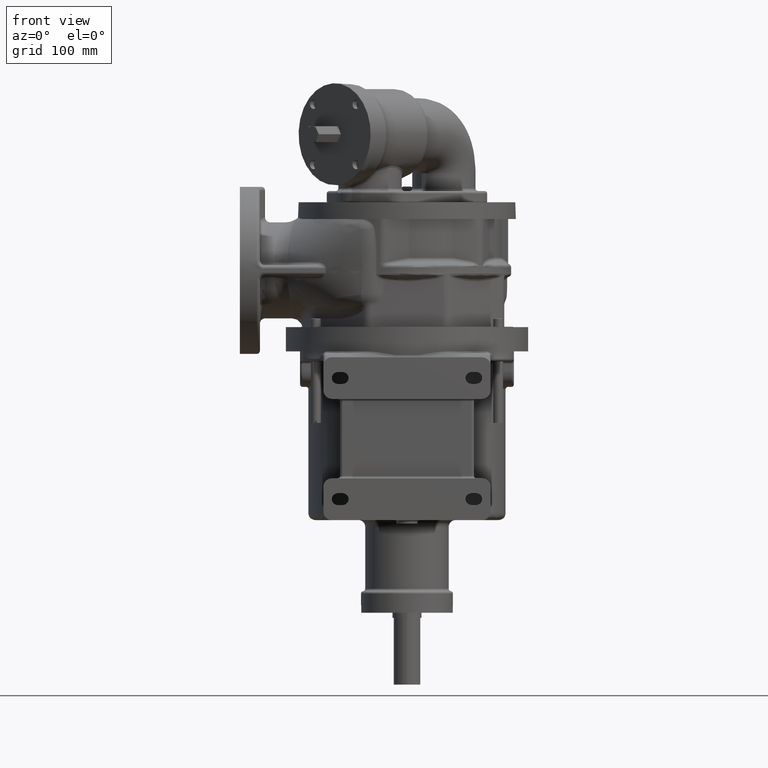
[diagram: clean part render]
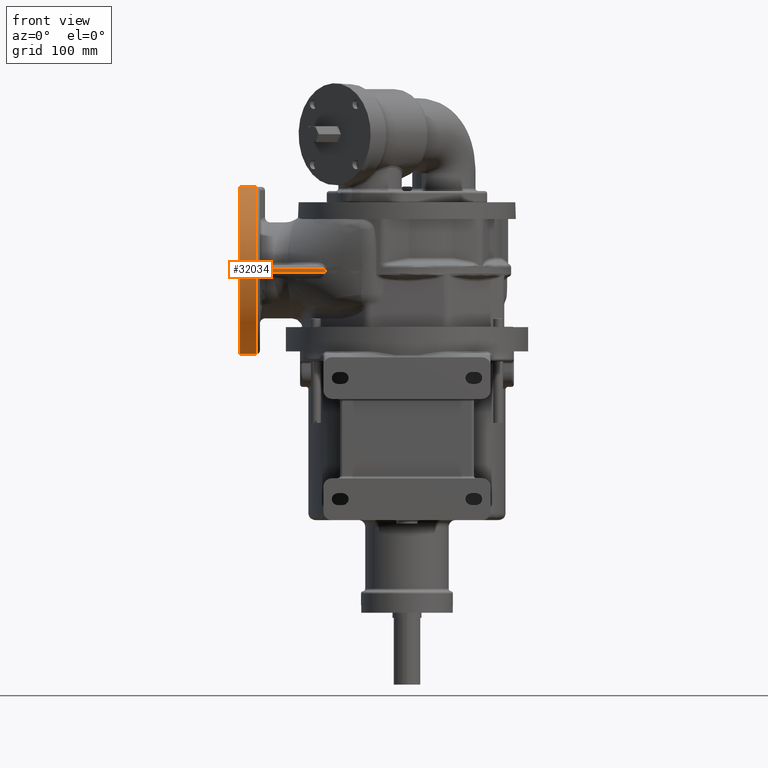
[diagram: same view with one face highlighted and labeled with its STEP entity id]
A machine part, front view. The second image highlights one B-rep face of the part: STEP entity #32034.
In plain terms, the highlighted cylindrical surface (partial cylindrical patch) has radius 100 mm, axis along (-1, 0, 0).
Its self-contained STEP definition (entity closure, byte-faithful):
#5959=CARTESIAN_POINT('',(-1.76E2,-6.588078458684E0,1.967827501236E2));
#5961=CARTESIAN_POINT('',(-1.76E2,-4.946328324905E-14,9.7E1));
#5962=DIRECTION('',(-1.E0,0.E0,0.E0));
#5963=DIRECTION('',(0.E0,-6.588078458684E-2,9.978275012357E-1));
#5964=AXIS2_PLACEMENT_3D('',#5961,#5962,#5963);
#5966=DIRECTION('',(-1.E0,-1.515624145678E-13,0.E0));
#5967=VECTOR('',#5966,2.4E1);
#5968=CARTESIAN_POINT('',(-1.76E2,-1.061186722255E-13,1.97E2));
#5969=LINE('',#5968,#5967);
#6060=CARTESIAN_POINT('',(-2.E2,-4.946328324905E-14,9.7E1));
#6061=DIRECTION('',(-1.E0,0.E0,0.E0));
#6062=DIRECTION('',(0.E0,0.E0,-1.E0));
#6063=AXIS2_PLACEMENT_3D('',#6060,#6061,#6062);
#6065=CARTESIAN_POINT('',(-1.76E2,-6.588078458684E0,1.967827501236E2));
#6066=CARTESIAN_POINT('',(-1.760687739567E2,-6.690023339579E0,
1.967760192907E2));
#6067=CARTESIAN_POINT('',(-1.762093848551E2,-6.891387920205E0,
1.967624107616E2));
#6068=CARTESIAN_POINT('',(-1.764296390594E2,-7.186120729896E0,
1.967416061799E2));
#6069=CARTESIAN_POINT('',(-1.766586817783E2,-7.472831379510E0,
1.967205272833E2));
#6070=CARTESIAN_POINT('',(-1.768961919772E2,-7.751200861915E0,
1.966992680315E2));
#6071=CARTESIAN_POINT('',(-1.770597496071E2,-7.930807255114E0,
1.966850548140E2));
#6072=CARTESIAN_POINT('',(-1.771428571429E2,-8.019162848397E0,
1.966779465439E2));
#6074=CARTESIAN_POINT('',(-1.771428571429E2,-8.019162848397E0,
1.966779465439E2));
#6075=CARTESIAN_POINT('',(-1.772235926011E2,-8.104997985213E0,
1.966710409937E2));
#6076=CARTESIAN_POINT('',(-1.773823039326E2,-8.279673471781E0,
1.966567653277E2));
#6077=CARTESIAN_POINT('',(-1.776122080230E2,-8.550938890366E0,
1.966338645482E2));
#6078=CARTESIAN_POINT('',(-1.778333612357E2,-8.830939858837E0,
1.966094455514E2));
#6079=CARTESIAN_POINT('',(-1.780454259852E2,-9.119343513568E0,1.965834641E2));
#6080=CARTESIAN_POINT('',(-1.782480144393E2,-9.415747108688E0,
1.965558839439E2));
#6081=CARTESIAN_POINT('',(-1.784408325218E2,-9.719801013431E0,
1.965266664877E2));
#6082=CARTESIAN_POINT('',(-1.786236077074E2,-1.003119873824E1,
1.964957710201E2));
#6083=CARTESIAN_POINT('',(-1.787960685903E2,-1.034959021480E1,
1.964631633484E2));
#6084=CARTESIAN_POINT('',(-1.789579397957E2,-1.067459037503E1,
1.964288158998E2));
#6085=CARTESIAN_POINT('',(-1.791089619218E2,-1.100580970882E1,
1.963927051460E2));
#6086=CARTESIAN_POINT('',(-1.792489004927E2,-1.134285342969E1,
1.963548120084E2));
#6087=CARTESIAN_POINT('',(-1.793775208155E2,-1.168531939927E1,
1.963151224209E2));
#6088=CARTESIAN_POINT('',(-1.794946183984E2,-1.203278438098E1,
1.962736293796E2));
#6089=CARTESIAN_POINT('',(-1.795999834352E2,-1.238482210509E1,
1.962303312739E2));
#6090=CARTESIAN_POINT('',(-1.796934401567E2,-1.274098201455E1,
1.961852348864E2));
#6091=CARTESIAN_POINT('',(-1.797748094677E2,-1.310080781880E1,
1.961383536067E2));
#6092=CARTESIAN_POINT('',(-1.798439493374E2,-1.346383359644E1,
1.960897082531E2));
#6093=CARTESIAN_POINT('',(-1.799007232997E2,-1.382959681861E1,
1.960393256075E2));
#6094=CARTESIAN_POINT('',(-1.799450118765E2,-1.419759233850E1,
1.959872449770E2));
#6095=CARTESIAN_POINT('',(-1.799767156776E2,-1.456724804134E1,
1.959335231240E2));
#6096=CARTESIAN_POINT('',(-1.799957615455E2,-1.493806401991E1,
1.958782139222E2));
#6097=CARTESIAN_POINT('',(-1.799999996430E2,-1.518549538137E1,
1.958403582219E2));
#6098=CARTESIAN_POINT('',(-1.8E2,-1.530931089240E1,1.958211768803E2));
#6100=CARTESIAN_POINT('',(-1.8E2,-4.946328324905E-14,9.7E1));
#6101=DIRECTION('',(1.E0,0.E0,0.E0));
#6102=DIRECTION('',(0.E0,-1.530931089239E-1,9.882117688026E-1));
#6103=AXIS2_PLACEMENT_3D('',#6100,#6101,#6102);
#6105=CARTESIAN_POINT('',(-1.8E2,-9.921567416492E1,1.095E2));
#6106=CARTESIAN_POINT('',(-1.799999996323E2,-9.923133804714E1,
1.093756712116E2));
#6107=CARTESIAN_POINT('',(-1.799957261826E2,-9.926216871871E1,
1.091271944967E2));
#6108=CARTESIAN_POINT('',(-1.799765156330E2,-9.930696179780E1,
1.087547486806E2));
#6109=CARTESIAN_POINT('',(-1.799445294684E2,-9.935020994706E1,
1.083834162719E2));
#6110=CARTESIAN_POINT('',(-1.798998354338E2,-9.939187169920E1,
1.080137055929E2));
#6111=CARTESIAN_POINT('',(-1.798425289683E2,-9.943190481127E1,
1.076461976864E2));
#6112=CARTESIAN_POINT('',(-1.797727253033E2,-9.947028260979E1,
1.072814073144E2));
#6113=CARTESIAN_POINT('',(-1.796905583330E2,-9.950699011507E1,
1.069198039529E2));
#6114=CARTESIAN_POINT('',(-1.795961650769E2,-9.954201838223E1,
1.065618617426E2));
#6115=CARTESIAN_POINT('',(-1.794897232594E2,-9.957536578029E1,
1.062080447403E2));
#6116=CARTESIAN_POINT('',(-1.793714058876E2,-9.960703703542E1,
1.058588135006E2));
#6117=CARTESIAN_POINT('',(-1.792414209424E2,-9.963704459255E1,
1.055146058291E2));
#6118=CARTESIAN_POINT('',(-1.790999758638E2,-9.966540647046E1,
1.051758552766E2));
#6119=CARTESIAN_POINT('',(-1.789473015671E2,-9.969214696947E1,
1.048429784846E2));
#6120=CARTESIAN_POINT('',(-1.787836417540E2,-9.971729567400E1,
1.045163810973E2));
#6121=CARTESIAN_POINT('',(-1.786092469400E2,-9.974088692791E1,
1.041964593745E2));
#6122=CARTESIAN_POINT('',(-1.784243942267E2,-9.976296006653E1,
1.038835905286E2));
#6123=CARTESIAN_POINT('',(-1.782293538163E2,-9.978355781700E1,
1.035781487524E2));
#6124=CARTESIAN_POINT('',(-1.780244286560E2,-9.980272750465E1,
1.032804807593E2));
#6125=CARTESIAN_POINT('',(-1.778099105499E2,-9.982051866067E1,
1.029909343987E2));
#6126=CARTESIAN_POINT('',(-1.775861202652E2,-9.983698449108E1,
1.027098285651E2));
#6127=CARTESIAN_POINT('',(-1.773533733894E2,-9.985217971883E1,
1.024374800990E2));
#6128=CARTESIAN_POINT('',(-1.771120016491E2,-9.986616141693E1,
1.021741823960E2));
#6129=CARTESIAN_POINT('',(-1.768623425043E2,-9.987898782131E1,
1.019202172827E2));
#6130=CARTESIAN_POINT('',(-1.766047356088E2,-9.989071800790E1,
1.016758538563E2));
#6131=CARTESIAN_POINT('',(-1.763395354051E2,-9.990141193444E1,
1.014413376867E2));
#6132=CARTESIAN_POINT('',(-1.760670886633E2,-9.991112900318E1,
1.012169130898E2));
#6133=CARTESIAN_POINT('',(-1.757877606154E2,-9.991992906946E1,
1.010027912298E2));
#6134=CARTESIAN_POINT('',(-1.755019054560E2,-9.992787038550E1,
1.007991891183E2));
#6135=CARTESIAN_POINT('',(-1.752098924871E2,-9.993501094784E1,
1.006062879230E2));
#6136=CARTESIAN_POINT('',(-1.749120830219E2,-9.994140654980E1,
1.004242734110E2));
#6137=CARTESIAN_POINT('',(-1.746088461086E2,-9.994711172962E1,
1.002533026778E2));
#6138=CARTESIAN_POINT('',(-1.743005486452E2,-9.995217857764E1,
1.000935281727E2));
#6139=CARTESIAN_POINT('',(-1.739875579488E2,-9.995665686464E1,
9.994508710498E1));
#6140=CARTESIAN_POINT('',(-1.736702455694E2,-9.996059379289E1,
9.980809989863E1));
#6141=CARTESIAN_POINT('',(-1.733489746033E2,-9.996403337603E1,
9.968268433506E1));
#6142=CARTESIAN_POINT('',(-1.730241058380E2,-9.996701700815E1,
9.956892695298E1));
#6143=CARTESIAN_POINT('',(-1.726959968286E2,-9.996958208727E1,
9.946692715139E1));
#6144=CARTESIAN_POINT('',(-1.723650420026E2,-9.997176286469E1,
9.937675987531E1));
#6145=CARTESIAN_POINT('',(-1.720316355438E2,-9.997358949223E1,
9.929850790103E1));
#6146=CARTESIAN_POINT('',(-1.716960973811E2,-9.997508924014E1,
9.923220447298E1));
#6147=CARTESIAN_POINT('',(-1.713587026136E2,-9.997628502677E1,
9.917788938326E1));
#6148=CARTESIAN_POINT('',(-1.710198652753E2,-9.997719523429E1,
9.913561773571E1));
#6149=CARTESIAN_POINT('',(-1.706801177614E2,-9.997783425967E1,
9.910543147544E1));
#6150=CARTESIAN_POINT('',(-1.703399110133E2,-9.997821279111E1,
9.908734561212E1));
#6151=CARTESIAN_POINT('',(-1.701132992633E2,-9.997829620189E1,
9.908333368741E1));
#6152=CARTESIAN_POINT('',(-1.7E2,-9.997829625585E1,9.908333333333E1));
#6154=DIRECTION('',(1.E0,5.496586785041E-11,5.712294678175E-11));
#6155=VECTOR('',#6154,7.169071041609E1);
#6156=CARTESIAN_POINT('',(-1.7E2,-9.997829625585E1,9.908333333333E1));
#6157=LINE('',#6156,#6155);
#6158=CARTESIAN_POINT('',(-9.828927518178E1,-1.E2,9.700000809340E1));
#6159=CARTESIAN_POINT('',(-9.828927628801E1,-9.999999998E1,9.723123378257E1));
#6160=CARTESIAN_POINT('',(-9.829076104614E1,-9.999839615958E1,
9.769386750278E1));
#6161=CARTESIAN_POINT('',(-9.829743252651E1,-9.999116547755E1,
9.838843150047E1));
#6162=CARTESIAN_POINT('',(-9.830484220813E1,-9.998312381963E1,
9.885166098277E1));
#6163=CARTESIAN_POINT('',(-9.830928958391E1,-9.997829625191E1,
9.908333333743E1));
#6165=CARTESIAN_POINT('',(-9.828228864606E1,-9.997829625964E1,
9.491666666968E1));
#6166=CARTESIAN_POINT('',(-9.828387872909E1,-9.998310940554E1,
9.514764708851E1));
#6167=CARTESIAN_POINT('',(-9.828649596859E1,-9.999114130256E1,
9.560995406306E1));
#6168=CARTESIAN_POINT('',(-9.828878655602E1,-9.999838594768E1,
9.630443938585E1));
#6169=CARTESIAN_POINT('',(-9.828927516257E1,-1.000000000264E2,
9.676804993609E1));
#6170=CARTESIAN_POINT('',(-9.828927518178E1,-1.E2,9.700000809340E1));
#6172=DIRECTION('',(1.E0,-5.291869514534E-11,4.205552517877E-11));
#6173=VECTOR('',#6172,7.171771135394E1);
#6174=CARTESIAN_POINT('',(-1.7E2,-9.997829625585E1,9.491666666667E1));
#6175=LINE('',#6174,#6173);
#6176=CARTESIAN_POINT('',(-1.8E2,-9.921567416492E1,8.45E1));
#6177=CARTESIAN_POINT('',(-1.799999996325E2,-9.923133804920E1,
8.462432880737E1));
#6178=CARTESIAN_POINT('',(-1.799957261933E2,-9.926216872439E1,
8.487280554849E1));
#6179=CARTESIAN_POINT('',(-1.799765156459E2,-9.930696180162E1,
8.524525135226E1));
#6180=CARTESIAN_POINT('',(-1.799445294507E2,-9.935020994946E1,
8.561658374890E1));
#6181=CARTESIAN_POINT('',(-1.798998354303E2,-9.939187169688E1,
8.598629438782E1));
#6182=CARTESIAN_POINT('',(-1.798425290174E2,-9.943190477889E1,
8.635380201578E1));
#6183=CARTESIAN_POINT('',(-1.797727254579E2,-9.947028253057E1,
8.671859192503E1));
#6184=CARTESIAN_POINT('',(-1.796905586292E2,-9.950698999223E1,
8.708019481990E1));
#6185=CARTESIAN_POINT('',(-1.795961655197E2,-9.954201822792E1,
8.743813665526E1));
#6186=CARTESIAN_POINT('',(-1.794897238775E2,-9.957536559905E1,
8.779195330458E1));
#6187=CARTESIAN_POINT('',(-1.793714067251E2,-9.960703682653E1,
8.814118415597E1));
#6188=CARTESIAN_POINT('',(-1.792414220173E2,-9.963704435755E1,
8.848539142607E1));
#6189=CARTESIAN_POINT('',(-1.790999772283E2,-9.966540621551E1,
8.882414162042E1));
#6190=CARTESIAN_POINT('',(-1.789473032013E2,-9.969214669747E1,
8.915701806271E1));
#6191=CARTESIAN_POINT('',(-1.787836437329E2,-9.971729538991E1,
8.948361513826E1));
#6192=CARTESIAN_POINT('',(-1.786092492410E2,-9.974088663259E1,
8.980353653683E1));
#6193=CARTESIAN_POINT('',(-1.784243969111E2,-9.976295976519E1,
9.011640510817E1));
#6194=CARTESIAN_POINT('',(-1.782293568804E2,-9.978355751148E1,
9.042184661721E1));
#6195=CARTESIAN_POINT('',(-1.780244321147E2,-9.980272719783E1,
9.071951436828E1));
#6196=CARTESIAN_POINT('',(-1.778099144579E2,-9.982051835619E1,
9.100906053156E1));
#6197=CARTESIAN_POINT('',(-1.775861245809E2,-9.983698418877E1,
9.129016615160E1));
#6198=CARTESIAN_POINT('',(-1.773533782055E2,-9.985217942431E1,
9.156251449503E1));
#6199=CARTESIAN_POINT('',(-1.771120068952E2,-9.986616112771E1,
9.182581202378E1));
#6200=CARTESIAN_POINT('',(-1.768623482776E2,-9.987898754365E1,
9.207977708220E1));
#6201=CARTESIAN_POINT('',(-1.766047418458E2,-9.989071773850E1,
9.232414038971E1));
#6202=CARTESIAN_POINT('',(-1.763395421784E2,-9.990141167824E1,
9.255865655065E1));
#6203=CARTESIAN_POINT('',(-1.760670959507E2,-9.991112875809E1,
9.278308110388E1));
#6204=CARTESIAN_POINT('',(-1.757877684264E2,-9.991992883748E1,
9.299720297840E1));
#6205=CARTESIAN_POINT('',(-1.755019138193E2,-9.992787016800E1,
9.320080516036E1));
#6206=CARTESIAN_POINT('',(-1.752099013614E2,-9.993501074254E1,
9.339370638584E1));
#6207=CARTESIAN_POINT('',(-1.749120924946E2,-9.994140636062E1,
9.357572106588E1));
#6208=CARTESIAN_POINT('',(-1.746088561044E2,-9.994711155180E1,
9.374669185646E1));
#6209=CARTESIAN_POINT('',(-1.743005591969E2,-9.995217841722E1,
9.390646664025E1));
#6210=CARTESIAN_POINT('',(-1.739875689491E2,-9.995665671644E1,
9.405490786119E1));
#6211=CARTESIAN_POINT('',(-1.736702570650E2,-9.996059366138E1,
9.419189541503E1));
#6212=CARTESIAN_POINT('',(-1.733489866619E2,-9.996403325564E1,
9.431731117585E1));
#6213=CARTESIAN_POINT('',(-1.730241186438E2,-9.996701689942E1,
9.443106881165E1));
#6214=CARTESIAN_POINT('',(-1.726960101956E2,-9.996958199124E1,
9.453306895169E1));
#6215=CARTESIAN_POINT('',(-1.723650552078E2,-9.997176278455E1,
9.462323674566E1));
#6216=CARTESIAN_POINT('',(-1.720316481225E2,-9.997358943156E1,
9.470148945433E1));
#6217=CARTESIAN_POINT('',(-1.716961099821E2,-9.997508918849E1,
9.476779321130E1));
#6218=CARTESIAN_POINT('',(-1.713587159736E2,-9.997628498594E1,
9.482210873821E1));
#6219=CARTESIAN_POINT('',(-1.710198776151E2,-9.997719520615E1,
9.486438094379E1));
#6220=CARTESIAN_POINT('',(-1.706801277169E2,-9.997783424640E1,
9.489456788986E1));
#6221=CARTESIAN_POINT('',(-1.703399169174E2,-9.997821278838E1,
9.491265426391E1));
#6222=CARTESIAN_POINT('',(-1.701133014104E2,-9.997829620228E1,
9.491666631515E1));
#6223=CARTESIAN_POINT('',(-1.7E2,-9.997829625585E1,9.491666666667E1));
#6225=CARTESIAN_POINT('',(-1.8E2,-4.946328324905E-14,9.7E1));
#6226=DIRECTION('',(-1.E0,0.E0,0.E0));
#6227=DIRECTION('',(0.E0,0.E0,-1.E0));
#6228=AXIS2_PLACEMENT_3D('',#6225,#6226,#6227);
#6230=DIRECTION('',(-1.E0,0.E0,0.E0));
#6231=VECTOR('',#6230,2.E1);
#6232=CARTESIAN_POINT('',(-1.8E2,0.E0,-3.E0));
#6233=LINE('',#6232,#6231);
#20895=CARTESIAN_POINT('',(-2.E2,0.E0,-3.E0));
#20896=CARTESIAN_POINT('',(-2.E2,-1.099855078154E-11,1.97E2));
#20897=VERTEX_POINT('',#20895);
#20898=VERTEX_POINT('',#20896);
#20996=CARTESIAN_POINT('',(-1.8E2,1.093284929056E-14,-3.E0));
#20997=VERTEX_POINT('',#20996);
#20998=CARTESIAN_POINT('',(-1.8E2,-9.921567416492E1,8.45E1));
#20999=VERTEX_POINT('',#20998);
#21000=VERTEX_POINT('',#6223);
#21005=CARTESIAN_POINT('',(-9.828228864606E1,-9.997829625964E1,
9.491666666968E1));
#21006=VERTEX_POINT('',#21005);
#21063=VERTEX_POINT('',#5959);
#21065=VERTEX_POINT('',#6072);
#21070=CARTESIAN_POINT('',(-1.8E2,-1.530931089239E1,1.958211768803E2));
#21071=CARTESIAN_POINT('',(-1.8E2,-9.921567416492E1,1.095E2));
#21072=VERTEX_POINT('',#21070);
#21073=VERTEX_POINT('',#21071);
#21075=VERTEX_POINT('',#6152);
#21076=CARTESIAN_POINT('',(-9.830928958391E1,-9.997829625191E1,
9.908333333743E1));
#21077=VERTEX_POINT('',#21076);
#21089=CARTESIAN_POINT('',(-1.76E2,-1.061186722255E-13,1.97E2));
#21090=VERTEX_POINT('',#21089);
#21513=VERTEX_POINT('',#6170);
#32004=CARTESIAN_POINT('',(-1.76E2,-4.946328324905E-14,9.7E1));
#32005=DIRECTION('',(-1.E0,0.E0,0.E0));
#32006=DIRECTION('',(0.E0,0.E0,1.E0));
#32007=AXIS2_PLACEMENT_3D('',#32004,#32005,#32006);
#32008=CYLINDRICAL_SURFACE('',#32007,1.E2);
#32009=ORIENTED_EDGE('',*,*,#31944,.T.);
#32010=ORIENTED_EDGE('',*,*,#31934,.F.);
#32011=ORIENTED_EDGE('',*,*,#31932,.F.);
#32013=ORIENTED_EDGE('',*,*,#32012,.T.);
#32015=ORIENTED_EDGE('',*,*,#32014,.T.);
#32017=ORIENTED_EDGE('',*,*,#32016,.T.);
#32019=ORIENTED_EDGE('',*,*,#32018,.T.);
#32021=ORIENTED_EDGE('',*,*,#32020,.T.);
#32023=ORIENTED_EDGE('',*,*,#32022,.F.);
#32025=ORIENTED_EDGE('',*,*,#32024,.F.);
#32027=ORIENTED_EDGE('',*,*,#32026,.F.);
#32029=ORIENTED_EDGE('',*,*,#32028,.F.);
#32030=ORIENTED_EDGE('',*,*,#31789,.F.);
#32031=ORIENTED_EDGE('',*,*,#31914,.T.);
#32032=EDGE_LOOP('',(#32009,#32010,#32011,#32013,#32015,#32017,#32019,#32021,
#32023,#32025,#32027,#32029,#32030,#32031));
#32033=FACE_OUTER_BOUND('',#32032,.F.);
#32034=ADVANCED_FACE('',(#32033),#32008,.T.);
#5965=CIRCLE('',#5964,1.E2);
#6064=CIRCLE('',#6063,1.E2);
#6073=B_SPLINE_CURVE_WITH_KNOTS('',3,(#6065,#6066,#6067,#6068,#6069,#6070,#6071,
#6072),.UNSPECIFIED.,.F.,.F.,(4,1,1,1,1,4),(0.E0,2.E-1,4.E-1,6.E-1,8.E-1,1.E0),
.UNSPECIFIED.);
#6099=B_SPLINE_CURVE_WITH_KNOTS('',3,(#6074,#6075,#6076,#6077,#6078,#6079,#6080,
#6081,#6082,#6083,#6084,#6085,#6086,#6087,#6088,#6089,#6090,#6091,#6092,#6093,
#6094,#6095,#6096,#6097,#6098),.UNSPECIFIED.,.F.,.F.,(4,1,1,1,1,1,1,1,1,1,1,1,1,
1,1,1,1,1,1,1,1,1,4),(0.E0,4.545454545455E-2,9.090909090909E-2,
1.363636363636E-1,1.818181818182E-1,2.272727272727E-1,2.727272727273E-1,
3.181818181818E-1,3.636363636364E-1,4.090909090909E-1,4.545454545455E-1,5.E-1,
5.454545454545E-1,5.909090909091E-1,6.363636363636E-1,6.818181818182E-1,
7.272727272727E-1,7.727272727273E-1,8.181818181818E-1,8.636363636364E-1,
9.090909090909E-1,9.545454545455E-1,1.E0),.UNSPECIFIED.);
#6104=CIRCLE('',#6103,1.E2);
#6153=B_SPLINE_CURVE_WITH_KNOTS('',3,(#6105,#6106,#6107,#6108,#6109,#6110,#6111,
#6112,#6113,#6114,#6115,#6116,#6117,#6118,#6119,#6120,#6121,#6122,#6123,#6124,
#6125,#6126,#6127,#6128,#6129,#6130,#6131,#6132,#6133,#6134,#6135,#6136,#6137,
#6138,#6139,#6140,#6141,#6142,#6143,#6144,#6145,#6146,#6147,#6148,#6149,#6150,
#6151,#6152),.UNSPECIFIED.,.F.,.F.,(4,1,1,1,1,1,1,1,1,1,1,1,1,1,1,1,1,1,1,1,1,1,
1,1,1,1,1,1,1,1,1,1,1,1,1,1,1,1,1,1,1,1,1,1,1,4),(0.E0,2.222222222222E-2,
4.444444444444E-2,6.666666666667E-2,8.888888888889E-2,1.111111111111E-1,
1.333333333333E-1,1.555555555556E-1,1.777777777778E-1,2.E-1,2.222222222222E-1,
2.444444444444E-1,2.666666666667E-1,2.888888888889E-1,3.111111111111E-1,
3.333333333333E-1,3.555555555556E-1,3.777777777778E-1,4.E-1,4.222222222222E-1,
4.444444444444E-1,4.666666666667E-1,4.888888888889E-1,5.111111111111E-1,
5.333333333333E-1,5.555555555556E-1,5.777777777778E-1,6.E-1,6.222222222222E-1,
6.444444444444E-1,6.666666666667E-1,6.888888888889E-1,7.111111111111E-1,
7.333333333333E-1,7.555555555556E-1,7.777777777778E-1,8.E-1,8.222222222222E-1,
8.444444444444E-1,8.666666666667E-1,8.888888888889E-1,9.111111111111E-1,
9.333333333333E-1,9.555555555556E-1,9.777777777778E-1,1.E0),.UNSPECIFIED.);
#6164=B_SPLINE_CURVE_WITH_KNOTS('',3,(#6158,#6159,#6160,#6161,#6162,#6163),
.UNSPECIFIED.,.F.,.F.,(4,1,1,4),(0.E0,3.333333333333E-1,6.666666666667E-1,1.E0),
.UNSPECIFIED.);
#6171=B_SPLINE_CURVE_WITH_KNOTS('',3,(#6165,#6166,#6167,#6168,#6169,#6170),
.UNSPECIFIED.,.F.,.F.,(4,1,1,4),(0.E0,3.333333333333E-1,6.666666666667E-1,1.E0),
.UNSPECIFIED.);
#6224=B_SPLINE_CURVE_WITH_KNOTS('',3,(#6176,#6177,#6178,#6179,#6180,#6181,#6182,
#6183,#6184,#6185,#6186,#6187,#6188,#6189,#6190,#6191,#6192,#6193,#6194,#6195,
#6196,#6197,#6198,#6199,#6200,#6201,#6202,#6203,#6204,#6205,#6206,#6207,#6208,
#6209,#6210,#6211,#6212,#6213,#6214,#6215,#6216,#6217,#6218,#6219,#6220,#6221,
#6222,#6223),.UNSPECIFIED.,.F.,.F.,(4,1,1,1,1,1,1,1,1,1,1,1,1,1,1,1,1,1,1,1,1,1,
1,1,1,1,1,1,1,1,1,1,1,1,1,1,1,1,1,1,1,1,1,1,1,4),(0.E0,2.222222222222E-2,
4.444444444444E-2,6.666666666667E-2,8.888888888889E-2,1.111111111111E-1,
1.333333333333E-1,1.555555555556E-1,1.777777777778E-1,2.E-1,2.222222222222E-1,
2.444444444444E-1,2.666666666667E-1,2.888888888889E-1,3.111111111111E-1,
3.333333333333E-1,3.555555555556E-1,3.777777777778E-1,4.E-1,4.222222222222E-1,
4.444444444444E-1,4.666666666667E-1,4.888888888889E-1,5.111111111111E-1,
5.333333333333E-1,5.555555555556E-1,5.777777777778E-1,6.E-1,6.222222222222E-1,
6.444444444444E-1,6.666666666667E-1,6.888888888889E-1,7.111111111111E-1,
7.333333333333E-1,7.555555555556E-1,7.777777777778E-1,8.E-1,8.222222222222E-1,
8.444444444444E-1,8.666666666667E-1,8.888888888889E-1,9.111111111111E-1,
9.333333333333E-1,9.555555555556E-1,9.777777777778E-1,1.E0),.UNSPECIFIED.);
#6229=CIRCLE('',#6228,1.E2);
#31789=EDGE_CURVE('',#20997,#20999,#6229,.T.);
#31914=EDGE_CURVE('',#20997,#20897,#6233,.T.);
#31932=EDGE_CURVE('',#21063,#21090,#5965,.T.);
#31934=EDGE_CURVE('',#21090,#20898,#5969,.T.);
#31944=EDGE_CURVE('',#20897,#20898,#6064,.T.);
#32012=EDGE_CURVE('',#21063,#21065,#6073,.T.);
#32014=EDGE_CURVE('',#21065,#21072,#6099,.T.);
#32016=EDGE_CURVE('',#21072,#21073,#6104,.T.);
#32018=EDGE_CURVE('',#21073,#21075,#6153,.T.);
#32020=EDGE_CURVE('',#21075,#21077,#6157,.T.);
#32022=EDGE_CURVE('',#21513,#21077,#6164,.T.);
#32024=EDGE_CURVE('',#21006,#21513,#6171,.T.);
#32026=EDGE_CURVE('',#21000,#21006,#6175,.T.);
#32028=EDGE_CURVE('',#20999,#21000,#6224,.T.);